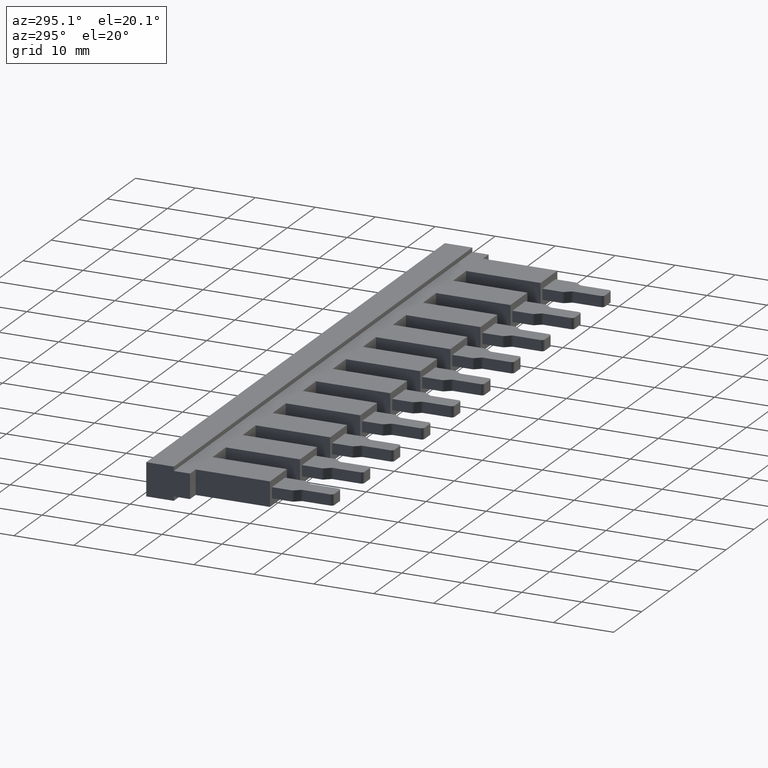
[diagram: clean part render]
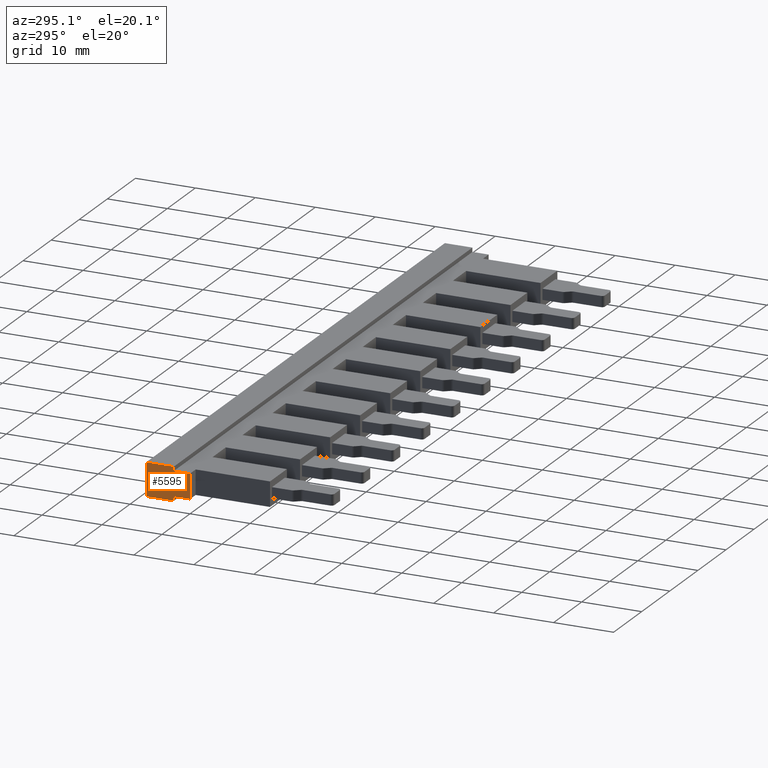
[diagram: same view with one face highlighted and labeled with its STEP entity id]
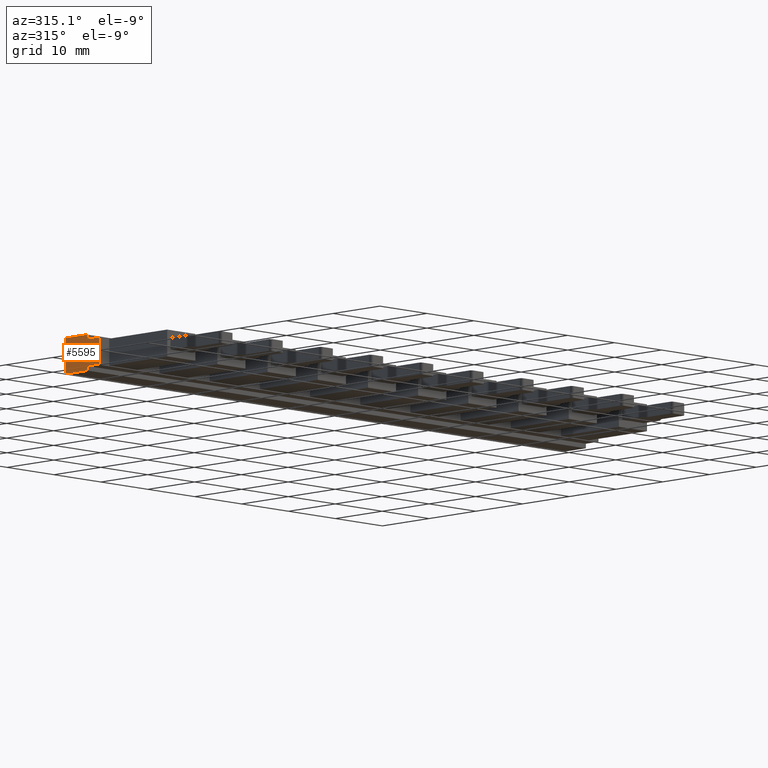
[diagram: same view with one face highlighted and labeled with its STEP entity id]
A machine part, auxiliary view. The second image highlights one B-rep face of the part: STEP entity #5595.
A second angle (auxiliary view) of the same face is appended — the face is thin or edge-on in the first view.
In plain terms, the highlighted planar face has unit normal (1, -0, 0).
Its self-contained STEP definition (entity closure, byte-faithful):
#502 = DIRECTION ( 'NONE',  ( 2.409338161078894500E-017, 1.000000000000000000, 0.0000000000000000000 ) ) ;
#504 = FACE_OUTER_BOUND ( 'NONE', #2290, .T. ) ;
#524 = PLANE ( 'NONE',  #1096 ) ;
#526 = DIRECTION ( 'NONE',  ( 1.000000000000000000, -2.409338161078894500E-017, 0.0000000000000000000 ) ) ;
#533 = CARTESIAN_POINT ( 'NONE',  ( 0.0000000000000000000, 7.299999999999999800, -0.8000000000000000400 ) ) ;
#1096 = AXIS2_PLACEMENT_3D ( 'NONE', #533, #526, #502 ) ;
#1324 = VECTOR ( 'NONE', #2502, 1000.000000000000000 ) ;
#1326 = VECTOR ( 'NONE', #2423, 1000.000000000000000 ) ;
#1333 = VECTOR ( 'NONE', #2483, 1000.000000000000000 ) ;
#1339 = VECTOR ( 'NONE', #2498, 1000.000000000000000 ) ;
#1340 = VECTOR ( 'NONE', #2394, 1000.000000000000000 ) ;
#1352 = VECTOR ( 'NONE', #2413, 1000.000000000000000 ) ;
#1368 = VECTOR ( 'NONE', #2475, 1000.000000000000000 ) ;
#1558 = VECTOR ( 'NONE', #3731, 1000.000000000000000 ) ;
#2290 = EDGE_LOOP ( 'NONE', ( #2643, #2642, #2627, #2653, #2673, #2646, #2617, #2620 ) ) ;
#2352 = LINE ( 'NONE', #2412, #1352 ) ;
#2370 = LINE ( 'NONE', #2373, #1340 ) ;
#2373 = CARTESIAN_POINT ( 'NONE',  ( 0.0000000000000000000, 7.299999999999999800, -0.8000000000000000400 ) ) ;
#2394 = DIRECTION ( 'NONE',  ( -0.0000000000000000000, 0.0000000000000000000, 1.000000000000000000 ) ) ;
#2412 = CARTESIAN_POINT ( 'NONE',  ( 0.0000000000000000000, 7.299999999999999800, -0.6999999999999999600 ) ) ;
#2413 = DIRECTION ( 'NONE',  ( 2.409338161078894500E-017, 1.000000000000000000, 0.0000000000000000000 ) ) ;
#2423 = DIRECTION ( 'NONE',  ( -2.409338161078894500E-017, -1.000000000000000000, 0.0000000000000000000 ) ) ;
#2428 = CARTESIAN_POINT ( 'NONE',  ( 0.0000000000000000000, 7.299999999999999800, 4.799999999999999800 ) ) ;
#2432 = LINE ( 'NONE', #2507, #1333 ) ;
#2459 = LINE ( 'NONE', #2428, #1326 ) ;
#2464 = LINE ( 'NONE', #2467, #1324 ) ;
#2467 = CARTESIAN_POINT ( 'NONE',  ( 0.0000000000000000000, 2.699999999999997500, -0.8000000000000000400 ) ) ;
#2475 = DIRECTION ( 'NONE',  ( 0.0000000000000000000, -1.000000000000000000, -0.0000000000000000000 ) ) ;
#2476 = LINE ( 'NONE', #2479, #1368 ) ;
#2479 = CARTESIAN_POINT ( 'NONE',  ( 0.0000000000000000000, 2.317590563905012700E-015, 0.0000000000000000000 ) ) ;
#2483 = DIRECTION ( 'NONE',  ( 0.0000000000000000000, 0.0000000000000000000, 1.000000000000000000 ) ) ;
#2488 = LINE ( 'NONE', #2495, #1339 ) ;
#2495 = CARTESIAN_POINT ( 'NONE',  ( 0.0000000000000000000, 7.299999999999999800, 4.100000000000000500 ) ) ;
#2498 = DIRECTION ( 'NONE',  ( -2.409338161078894500E-017, -1.000000000000000000, -0.0000000000000000000 ) ) ;
#2502 = DIRECTION ( 'NONE',  ( 0.0000000000000000000, 0.0000000000000000000, -1.000000000000000000 ) ) ;
#2507 = CARTESIAN_POINT ( 'NONE',  ( -1.108295554096292100E-016, 2.699999999999997500, -0.8000000000000000400 ) ) ;
#2617 = ORIENTED_EDGE ( 'NONE', *, *, #5034, .F. ) ;
#2620 = ORIENTED_EDGE ( 'NONE', *, *, #5067, .F. ) ;
#2627 = ORIENTED_EDGE ( 'NONE', *, *, #5071, .F. ) ;
#2642 = ORIENTED_EDGE ( 'NONE', *, *, #5239, .T. ) ;
#2643 = ORIENTED_EDGE ( 'NONE', *, *, #5068, .T. ) ;
#2646 = ORIENTED_EDGE ( 'NONE', *, *, #5044, .F. ) ;
#2653 = ORIENTED_EDGE ( 'NONE', *, *, #5065, .T. ) ;
#2673 = ORIENTED_EDGE ( 'NONE', *, *, #5051, .F. ) ;
#3703 = CARTESIAN_POINT ( 'NONE',  ( 0.0000000000000000000, 0.0000000000000000000, 4.100000000000000500 ) ) ;
#3729 = LINE ( 'NONE', #3703, #1558 ) ;
#3731 = DIRECTION ( 'NONE',  ( 0.0000000000000000000, -0.0000000000000000000, 1.000000000000000000 ) ) ;
#4588 = CARTESIAN_POINT ( 'NONE',  ( -8.794084287937965300E-017, 0.0000000000000000000, 4.100000000000000500 ) ) ;
#4603 = CARTESIAN_POINT ( 'NONE',  ( 0.0000000000000000000, 7.299999999999999800, -0.6999999999999999600 ) ) ;
#4609 = CARTESIAN_POINT ( 'NONE',  ( -1.108295554096292100E-016, 2.699999999999997500, 4.799999999999999800 ) ) ;
#4621 = CARTESIAN_POINT ( 'NONE',  ( -1.108295554096292100E-016, 2.699999999999997500, -0.6999999999999999600 ) ) ;
#4622 = CARTESIAN_POINT ( 'NONE',  ( -1.108295554096292100E-016, 2.699999999999997500, 4.100000000000000500 ) ) ;
#4668 = CARTESIAN_POINT ( 'NONE',  ( 0.0000000000000000000, 7.299999999999999800, 4.799999999999999800 ) ) ;
#4676 = CARTESIAN_POINT ( 'NONE',  ( -8.794084287937965300E-017, 0.0000000000000000000, 0.0000000000000000000 ) ) ;
#4707 = CARTESIAN_POINT ( 'NONE',  ( 0.0000000000000000000, 2.699999999999997500, 0.0000000000000000000 ) ) ;
#5034 = EDGE_CURVE ( 'NONE', #5813, #5835, #2352, .T. ) ;
#5044 = EDGE_CURVE ( 'NONE', #5835, #5843, #2370, .T. ) ;
#5051 = EDGE_CURVE ( 'NONE', #5843, #5826, #2459, .T. ) ;
#5065 = EDGE_CURVE ( 'NONE', #5814, #5826, #2432, .T. ) ;
#5067 = EDGE_CURVE ( 'NONE', #5899, #5813, #2464, .T. ) ;
#5068 = EDGE_CURVE ( 'NONE', #5899, #5884, #2476, .T. ) ;
#5071 = EDGE_CURVE ( 'NONE', #5814, #5820, #2488, .T. ) ;
#5239 = EDGE_CURVE ( 'NONE', #5884, #5820, #3729, .T. ) ;
#5595 = ADVANCED_FACE ( 'NONE', ( #504 ), #524, .F. ) ;
#5813 = VERTEX_POINT ( 'NONE', #4621 ) ;
#5814 = VERTEX_POINT ( 'NONE', #4622 ) ;
#5820 = VERTEX_POINT ( 'NONE', #4588 ) ;
#5826 = VERTEX_POINT ( 'NONE', #4609 ) ;
#5835 = VERTEX_POINT ( 'NONE', #4603 ) ;
#5843 = VERTEX_POINT ( 'NONE', #4668 ) ;
#5884 = VERTEX_POINT ( 'NONE', #4676 ) ;
#5899 = VERTEX_POINT ( 'NONE', #4707 ) ;